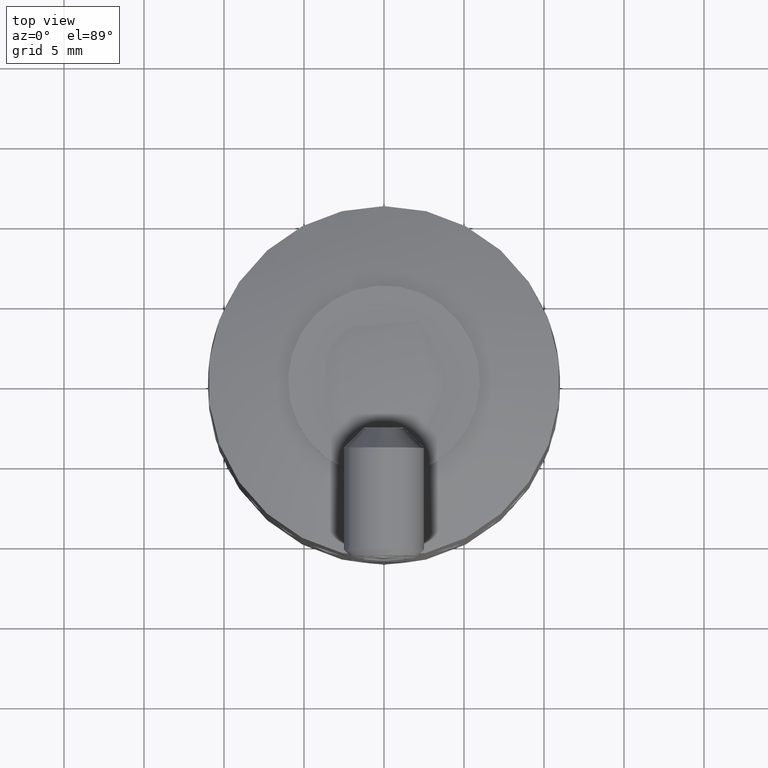
[diagram: clean part render]
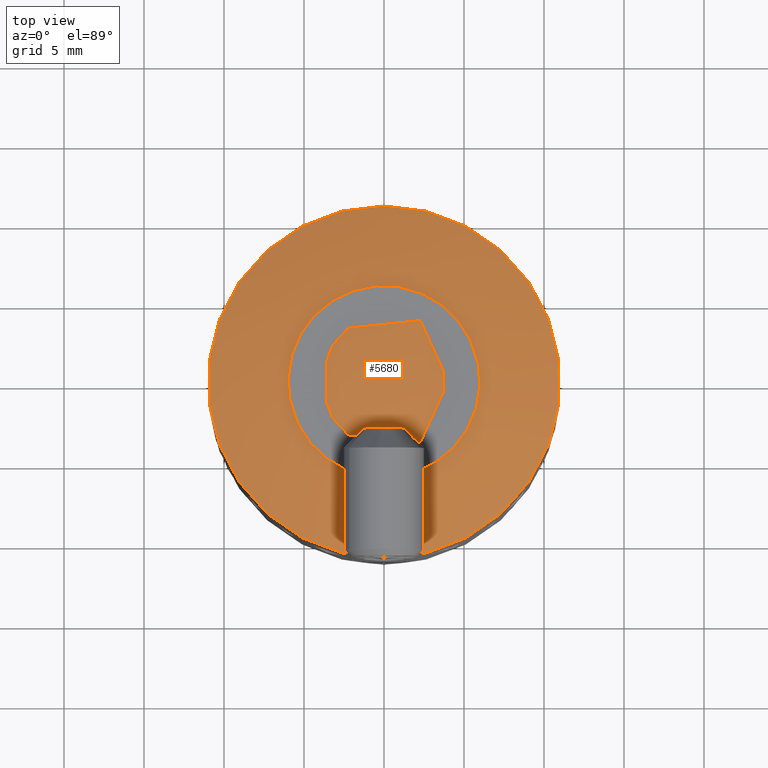
[diagram: same view with one face highlighted and labeled with its STEP entity id]
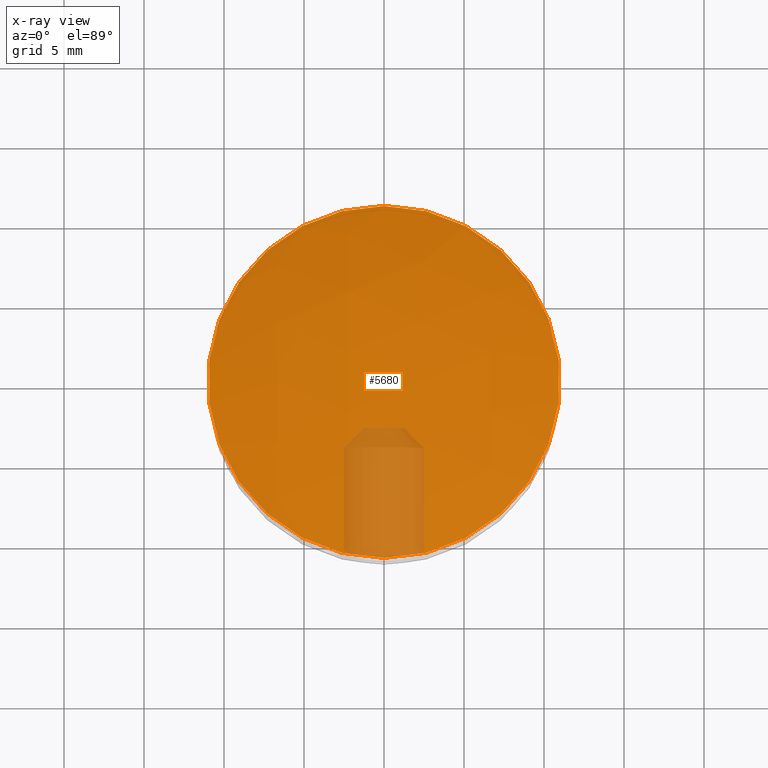
[diagram: x-ray of the same camera — body ghosted, the highlighted face saturated]
A machine part, top view. The second image highlights one B-rep face of the part: STEP entity #5680.
The next image is the same camera in x-ray: the body ghosted, the highlighted face saturated — about 10% of this face is hidden behind the body in this view.
In plain terms, the highlighted spherical surface has radius 28 mm.
Its self-contained STEP definition (entity closure, byte-faithful):
#1077 = ORIENTED_EDGE ( 'NONE', *, *, #4928, .T. ) ;
#1994 = CARTESIAN_POINT ( 'NONE',  ( 0.000000000000000000, 2.407412430484044816E-32, -15.00000000000000000 ) ) ;
#2183 = SPHERICAL_SURFACE ( 'NONE', #3768, 28.00000000000000000 ) ;
#2188 = DIRECTION ( 'NONE',  ( -0.000000000000000000, 1.081595917263183534E-17, 1.000000000000000000 ) ) ;
#2414 = CIRCLE ( 'NONE', #5144, 10.99999999999999467 ) ;
#2774 = VERTEX_POINT ( 'NONE', #5599 ) ;
#3372 = EDGE_LOOP ( 'NONE', ( #1077 ) ) ;
#3433 = DIRECTION ( 'NONE',  ( -1.000000000000000000, 0.000000000000000000, 0.000000000000000000 ) ) ;
#3624 = DIRECTION ( 'NONE',  ( 0.000000000000000000, -1.000000000000000000, 0.000000000000000000 ) ) ;
#3768 = AXIS2_PLACEMENT_3D ( 'NONE', #1994, #3433, #4426 ) ;
#4082 = CARTESIAN_POINT ( 'NONE',  ( 0.000000000000000000, -2.434903461179736260E-17, 10.74878637916746804 ) ) ;
#4426 = DIRECTION ( 'NONE',  ( 0.000000000000000000, 1.000000000000000000, 0.000000000000000000 ) ) ;
#4928 = EDGE_CURVE ( 'NONE', #2774, #2774, #2414, .T. ) ;
#5144 = AXIS2_PLACEMENT_3D ( 'NONE', #4082, #2188, #3624 ) ;
#5599 = CARTESIAN_POINT ( 'NONE',  ( 0.000000000000000000, -10.99999999999999467, 10.74878637916746804 ) ) ;
#5676 = FACE_OUTER_BOUND ( 'NONE', #3372, .T. ) ;
#5680 = ADVANCED_FACE ( 'NONE', ( #5676 ), #2183, .T. ) ;